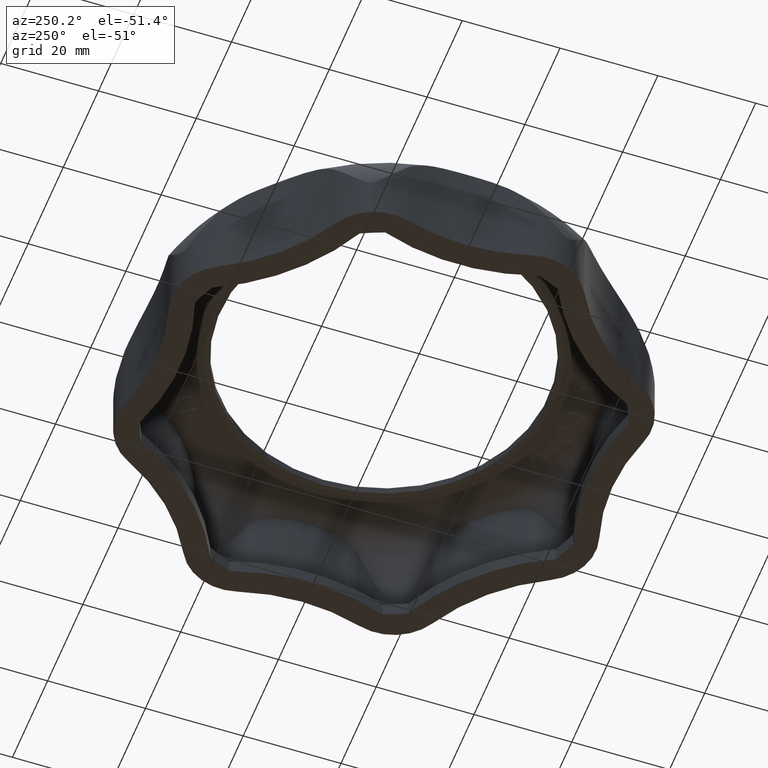
[diagram: clean part render]
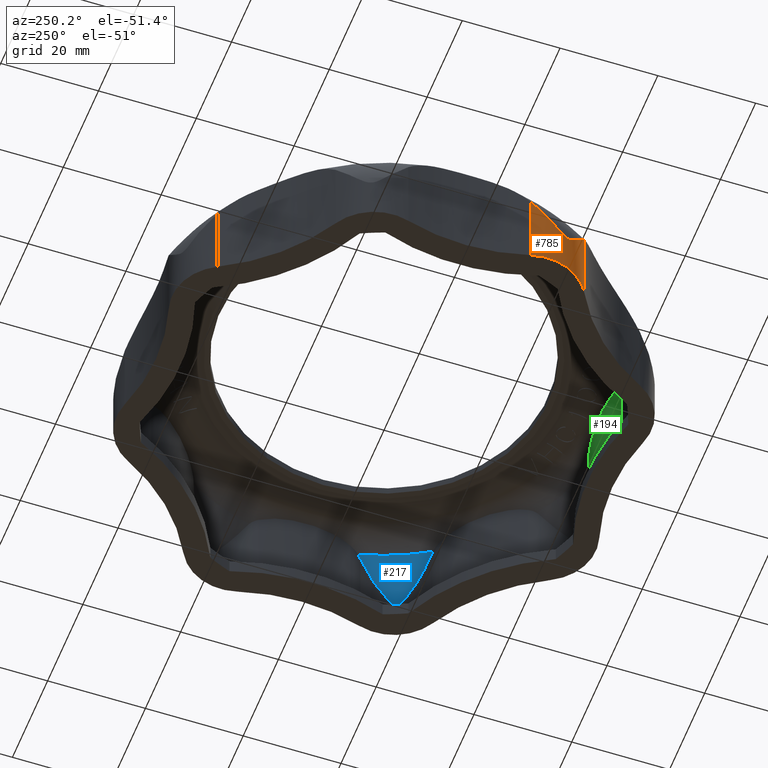
[diagram: same view with three faces highlighted in distinct colors, each labeled with its STEP entity id]
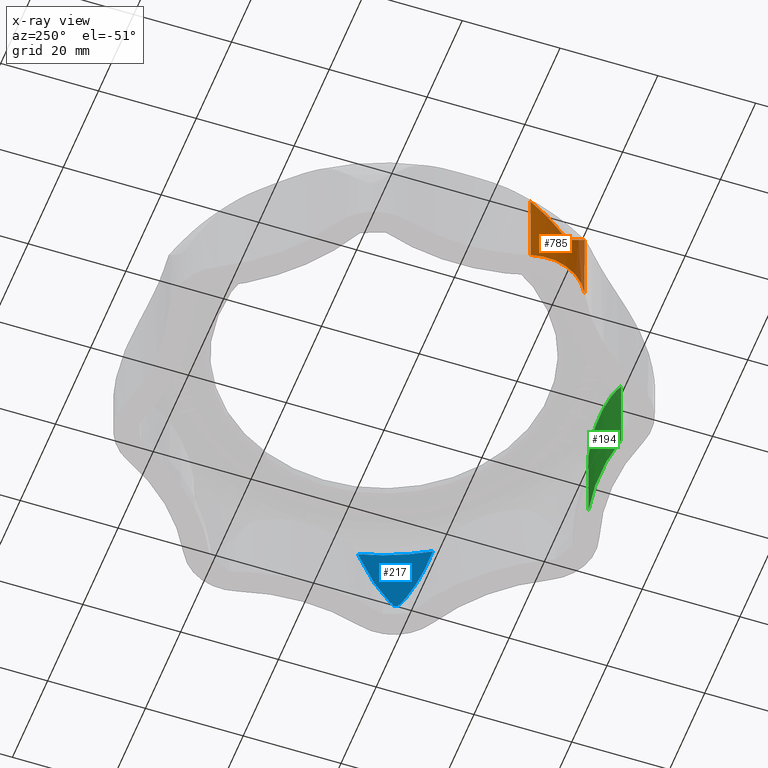
[diagram: x-ray of the same camera — body ghosted, the three highlighted faces saturated]
A machine part, auxiliary view with three faces highlighted in distinct colors.
The next image is the same camera in x-ray (body ghosted, the three faces saturated) — at least one of them is partly hidden behind the body in this view.
Their STEP definitions:

[orange] entity #785 — the highlighted cylindrical surface (partial cylindrical patch) has radius 11 mm, axis along (0, 0, -1).
#785 = ADVANCED_FACE( '', ( #3769 ), #3770, .T. );
#3769 = FACE_OUTER_BOUND( '', #8477, .T. );
#3770 = CYLINDRICAL_SURFACE( '', #8478, 11.0000000000000 );
#8477 = EDGE_LOOP( '', ( #19138, #19139, #19140, #19141 ) );
#8478 = AXIS2_PLACEMENT_3D( '', #19142, #19143, #19144 );
#19138 = ORIENTED_EDGE( '', *, *, #34962, .F. );
#19139 = ORIENTED_EDGE( '', *, *, #31592, .T. );
#19140 = ORIENTED_EDGE( '', *, *, #34956, .T. );
#19141 = ORIENTED_EDGE( '', *, *, #34979, .T. );
#19142 = CARTESIAN_POINT( '', ( -38.0204367624887, -15.7485805543714, -151.431544236596 ) );
#19143 = DIRECTION( '', ( 0.000000000000000, 0.000000000000000, -1.00000000000000 ) );
#19144 = DIRECTION( '', ( 0.467628644481239, 0.883925025587939, 0.000000000000000 ) );
#31592 = EDGE_CURVE( '', #38249, #38247, #38250, .T. );
#34956 = EDGE_CURVE( '', #38247, #44286, #44287, .T. );
#34962 = EDGE_CURVE( '', #38249, #44297, #44298, .T. );
#34979 = EDGE_CURVE( '', #44286, #44297, #44319, .T. );
#38247 = VERTEX_POINT( '', #49328 );
#38249 = VERTEX_POINT( '', #49330 );
#38250 = CIRCLE( '', #49331, 11.0000000000000 );
#44286 = VERTEX_POINT( '', #64978 );
#44287 = LINE( '', #64979, #64980 );
#44297 = VERTEX_POINT( '', #65024 );
#44298 = LINE( '', #65025, #65026 );
#44319 = B_SPLINE_CURVE_WITH_KNOTS( '', 3, ( #65255, #65256, #65257, #65258, #65259, #65260, #65261, #65262, #65263, #65264, #65265, #65266, #65267, #65268, #65269, #65270, #65271, #65272, #65273, #65274, #65275, #65276, #65277, #65278, #65279, #65280, #65281, #65282, #65283, #65284, #65285, #65286, #65287, #65288, #65289, #65290 ), .UNSPECIFIED., .F., .F., ( 4, 2, 2, 2, 2, 2, 2, 2, 2, 2, 2, 2, 2, 2, 2, 2, 2, 4 ), ( 3.95665783965913E-007, 0.00270470619711453, 0.00540901672844509, 0.00676117199411038, 0.00811332725977566, 0.00878940489260830, 0.00946548252544094, 0.0101415601582736, 0.0104795989746899, 0.0108176377911062, 0.0114937154239388, 0.0121697930567715, 0.0128458706896041, 0.0135219483224367, 0.0148741035881020, 0.0162262588537673, 0.0189305693850978, 0.0216348799164283 ), .UNSPECIFIED. );
#49328 = CARTESIAN_POINT( '', ( -43.1643518517822, -25.4717558358389, -0.000342076785297268 ) );
#49330 = CARTESIAN_POINT( '', ( -48.5330571801671, -12.5105546196677, -0.000342076785297268 ) );
#49331 = AXIS2_PLACEMENT_3D( '', #77690, #77691, #77692 );
#64978 = CARTESIAN_POINT( '', ( -43.1643518517822, -25.4717558358389, 16.5159049165595 ) );
#64979 = CARTESIAN_POINT( '', ( -43.1643518517823, -25.4717558358389, -151.431544236596 ) );
#64980 = VECTOR( '', #78630, 1000.00000000000 );
#65024 = CARTESIAN_POINT( '', ( -48.5330571801635, -12.5105546196560, 16.5159049165736 ) );
#65025 = CARTESIAN_POINT( '', ( -48.5330571801671, -12.5105546196677, -151.431544236596 ) );
#65026 = VECTOR( '', #78633, 1000.00000000000 );
#65255 = CARTESIAN_POINT( '', ( -43.1643518517823, -25.4717558358388, 16.5159049165595 ) );
#65256 = CARTESIAN_POINT( '', ( -43.6872267584845, -25.1951359000114, 15.8238550649493 ) );
#65257 = CARTESIAN_POINT( '', ( -44.1792912709590, -24.8812229393074, 15.1323374324265 ) );
#65258 = CARTESIAN_POINT( '', ( -45.1058734687146, -24.1826325147106, 13.7509064053809 ) );
#65259 = CARTESIAN_POINT( '', ( -45.5401600971507, -23.7984796481749, 13.0605547281404 ) );
#65260 = CARTESIAN_POINT( '', ( -46.1527782615075, -23.1615287098563, 12.0332554174375 ) );
#65261 = CARTESIAN_POINT( '', ( -46.3505236385622, -22.9390106090096, 11.6922432960740 ) );
#65262 = CARTESIAN_POINT( '', ( -46.7353730849093, -22.4673986520527, 11.0179341180032 ) );
#65263 = CARTESIAN_POINT( '', ( -46.9225530314980, -22.2183195938998, 10.6837538602552 ) );
#65264 = CARTESIAN_POINT( '', ( -47.1968512963834, -21.8165057045992, 10.2044144812275 ) );
#65265 = CARTESIAN_POINT( '', ( -47.2873775542202, -21.6776099088370, 10.0481218771725 ) );
#65266 = CARTESIAN_POINT( '', ( -47.4682090412108, -21.3849960547566, 9.74833327157230 ) );
#65267 = CARTESIAN_POINT( '', ( -47.5578351254992, -21.2324487009526, 9.60570996314440 ) );
#65268 = CARTESIAN_POINT( '', ( -47.7382408399497, -20.9060083334030, 9.34802898548798 ) );
#65269 = CARTESIAN_POINT( '', ( -47.8301912290722, -20.7299206861208, 9.23116472176113 ) );
#65270 = CARTESIAN_POINT( '', ( -47.9688105914218, -20.4433772710043, 9.10421430918793 ) );
#65271 = CARTESIAN_POINT( '', ( -48.0147910716014, -20.3448274880570, 9.07041021795348 ) );
#65272 = CARTESIAN_POINT( '', ( -48.1065190208688, -20.1398843025403, 9.02527685820773 ) );
#65273 = CARTESIAN_POINT( '', ( -48.1520465153899, -20.0338263332541, 9.01453423311431 ) );
#65274 = CARTESIAN_POINT( '', ( -48.2812746923350, -19.7192977766729, 9.02156999548207 ) );
#65275 = CARTESIAN_POINT( '', ( -48.3606790156411, -19.5066298229417, 9.08031374702041 ) );
#65276 = CARTESIAN_POINT( '', ( -48.4957701436170, -19.1117538643718, 9.26017119206250 ) );
#65277 = CARTESIAN_POINT( '', ( -48.5539905909933, -18.9232310997492, 9.38092108644531 ) );
#65278 = CARTESIAN_POINT( '', ( -48.6547001182018, -18.5675529246881, 9.64377776627560 ) );
#65279 = CARTESIAN_POINT( '', ( -48.6978095652391, -18.3985454490536, 9.78707980922311 ) );
#65280 = CARTESIAN_POINT( '', ( -48.7742306650352, -18.0690375381390, 10.0858599404053 ) );
#65281 = CARTESIAN_POINT( '', ( -48.8074514103585, -17.9087028760662, 10.2415490863429 ) );
#65282 = CARTESIAN_POINT( '', ( -48.8951810183349, -17.4347570582129, 10.7197156118017 ) );
#65283 = CARTESIAN_POINT( '', ( -48.9377290290556, -17.1283367008847, 11.0526071378945 ) );
#65284 = CARTESIAN_POINT( '', ( -48.9969392298331, -16.5279335179680, 11.7224584049463 ) );
#65285 = CARTESIAN_POINT( '', ( -49.0136506417492, -16.2330763535141, 12.0611497852253 ) );
#65286 = CARTESIAN_POINT( '', ( -49.0289734426218, -15.3560624524032, 13.0815420740344 ) );
#65287 = CARTESIAN_POINT( '', ( -48.9929790124228, -14.7812117405667, 13.7673594967757 ) );
#65288 = CARTESIAN_POINT( '', ( -48.8317028769561, -13.6393127073024, 15.1402118231744 ) );
#65289 = CARTESIAN_POINT( '', ( -48.7062269995154, -13.0727701841229, 15.8276654461581 ) );
#65290 = CARTESIAN_POINT( '', ( -48.5330571801634, -12.5105546196561, 16.5159049165737 ) );
#77690 = CARTESIAN_POINT( '', ( -38.0204367624887, -15.7485805543714, -0.000342076785297268 ) );
#77691 = DIRECTION( '', ( -3.31376091451462E-017, -8.00012654228307E-017, 1.00000000000000 ) );
#77692 = DIRECTION( '', ( 0.923879532511287, 0.382683432365090, 6.12303176911189E-017 ) );
#78630 = DIRECTION( '', ( 0.000000000000000, 0.000000000000000, 1.00000000000000 ) );
#78633 = DIRECTION( '', ( 0.000000000000000, 0.000000000000000, 1.00000000000000 ) );

[blue] entity #217 — the highlighted face is a freeform B-spline surface patch.
#217 = ADVANCED_FACE( '', ( #2632 ), #2633, .F. );
#2632 = FACE_OUTER_BOUND( '', #7230, .T. );
#2633 = ( B_SPLINE_SURFACE( 3, 3, ( ( #7232, #7233, #7234, #7235 ), ( #7236, #7237, #7238, #7239 ), ( #7240, #7241, #7242, #7243 ), ( #7244, #7245, #7246, #7247 ) ), .UNSPECIFIED., .F., .F., .F. )B_SPLINE_SURFACE_WITH_KNOTS( ( 4, 4 ), ( 4, 4 ), ( 5.34152165611692, 5.65405263144735 ), ( 0.0327453096824577, 0.452451399637477 ), .UNSPECIFIED. )RATIONAL_B_SPLINE_SURFACE( ( ( 1.00000000000000, 0.991876915723392, 0.991876915723392, 1.00000000000000 ), ( 0.985374358928426, 0.977370079966842, 0.977370079966842, 0.985374358928426 ), ( 0.985374358928426, 0.977370079966842, 0.977370079966842, 0.985374358928426 ), ( 1.00000000000000, 0.991876915723392, 0.991876915723392, 1.00000000000000 ) ) )BOUNDED_SURFACE(  )REPRESENTATION_ITEM( '' )GEOMETRIC_REPRESENTATION_ITEM(  )SURFACE(  ) );
#7230 = EDGE_LOOP( '', ( #14575, #14576, #14577, #14578 ) );
#7232 = CARTESIAN_POINT( '', ( 40.0940676645953, -24.5247982340315, 18.1726414556777 ) );
#7233 = CARTESIAN_POINT( '', ( 42.6594407424239, -20.3308293056894, 18.1726414556777 ) );
#7234 = CARTESIAN_POINT( '', ( 44.5408470997926, -15.7887125613949, 18.1726414556777 ) );
#7235 = CARTESIAN_POINT( '', ( 45.6924382695031, -11.0091359924725, 18.1726414556777 ) );
#7236 = CARTESIAN_POINT( '', ( 41.6709013167366, -25.4893181597946, 14.3699243735556 ) );
#7237 = CARTESIAN_POINT( '', ( 44.3371662929192, -21.1304073403585, 14.3699243735556 ) );
#7238 = CARTESIAN_POINT( '', ( 46.2925652639202, -16.4096566247177, 14.3699243735556 ) );
#7239 = CARTESIAN_POINT( '', ( 47.4894466178319, -11.4421071806081, 14.3699243735556 ) );
#7240 = CARTESIAN_POINT( '', ( 42.5373711133454, -26.0193216784069, 10.2655746537821 ) );
#7241 = CARTESIAN_POINT( '', ( 45.2590761687828, -21.5697753206981, 10.2655746537821 ) );
#7242 = CARTESIAN_POINT( '', ( 47.2551340671205, -16.7508652712494, 10.2655746537821 ) );
#7243 = CARTESIAN_POINT( '', ( 48.4769023687708, -11.6800247674201, 10.2655746537821 ) );
#7244 = CARTESIAN_POINT( '', ( 42.6554590256881, -26.0915538661787, 6.03967853385794 ) );
#7245 = CARTESIAN_POINT( '', ( 45.3847198011806, -21.6296551315716, 6.03967853385794 ) );
#7246 = CARTESIAN_POINT( '', ( 47.3863189519267, -16.7973673154060, 6.03967853385794 ) );
#7247 = CARTESIAN_POINT( '', ( 48.6114790021579, -11.7124496612204, 6.03967853385794 ) );
#14575 = ORIENTED_EDGE( '', *, *, #33743, .T. );
#14576 = ORIENTED_EDGE( '', *, *, #32560, .T. );
#14577 = ORIENTED_EDGE( '', *, *, #33741, .T. );
#14578 = ORIENTED_EDGE( '', *, *, #33745, .T. );
#32560 = EDGE_CURVE( '', #40180, #40178, #40181, .T. );
#33741 = EDGE_CURVE( '', #40178, #42440, #42442, .T. );
#33743 = EDGE_CURVE( '', #42444, #40180, #42445, .T. );
#33745 = EDGE_CURVE( '', #42440, #42444, #42447, .T. );
#40178 = VERTEX_POINT( '', #54385 );
#40180 = VERTEX_POINT( '', #54392 );
#40181 = CIRCLE( '', #54393, 46.9999998969480 );
#42440 = VERTEX_POINT( '', #60334 );
#42442 = B_SPLINE_CURVE_WITH_KNOTS( '', 3, ( #60337, #60338, #60339, #60340 ), .UNSPECIFIED., .F., .F., ( 4, 4 ), ( 2.58974117789860E-007, 0.00111476586526753 ), .UNSPECIFIED. );
#42444 = VERTEX_POINT( '', #60343 );
#42445 = B_SPLINE_CURVE_WITH_KNOTS( '', 3, ( #60344, #60345, #60346, #60347 ), .UNSPECIFIED., .F., .F., ( 4, 4 ), ( 3.54062311438632E-007, 0.00111917456912453 ), .UNSPECIFIED. );
#42447 = B_SPLINE_CURVE_WITH_KNOTS( '', 3, ( #60350, #60351, #60352, #60353, #60354, #60355, #60356, #60357, #60358, #60359, #60360, #60361, #60362, #60363, #60364, #60365, #60366, #60367, #60368, #60369, #60370, #60371, #60372, #60373, #60374, #60375, #60376, #60377, #60378, #60379, #60380, #60381, #60382, #60383, #60384, #60385, #60386, #60387 ), .UNSPECIFIED., .F., .F., ( 4, 2, 2, 2, 2, 2, 2, 2, 2, 2, 2, 2, 2, 2, 2, 2, 2, 2, 4 ), ( 3.50084349988853E-007, 0.00339869376782857, 0.00679703745130715, 0.00849620929304644, 0.0101953811347857, 0.0118945529765250, 0.0127441388973947, 0.0131689318578295, 0.0133813283380469, 0.0135937248182643, 0.0138061212984817, 0.0140185177786991, 0.0144433107391339, 0.0152928966600036, 0.0169920685017429, 0.0186912403434822, 0.0203904121852215, 0.0237887558687001, 0.0271870995521787 ), .UNSPECIFIED. );
#54385 = CARTESIAN_POINT( '', ( 45.6719604569566, -11.0937828684044, 18.1726414556777 ) );
#54392 = CARTESIAN_POINT( '', ( 40.1394420444575, -24.4504638539383, 18.1726414556777 ) );
#54393 = AXIS2_PLACEMENT_3D( '', #77772, #77773, #77774 );
#60334 = CARTESIAN_POINT( '', ( 45.9480757702255, -11.7036693297914, 17.2816170741763 ) );
#60337 = CARTESIAN_POINT( '', ( 45.6719604569567, -11.0937828684042, 18.1726414556775 ) );
#60338 = CARTESIAN_POINT( '', ( 45.7623252853920, -11.3125957906160, 17.8857359638061 ) );
#60339 = CARTESIAN_POINT( '', ( 45.8549274879702, -11.5149997766273, 17.5882923303716 ) );
#60340 = CARTESIAN_POINT( '', ( 45.9480757702257, -11.7036693297913, 17.2816170741762 ) );
#60343 = CARTESIAN_POINT( '', ( 40.7682533178454, -24.2136682035306, 17.2780557812516 ) );
#60344 = CARTESIAN_POINT( '', ( 40.7682533178455, -24.2136682035305, 17.2780557812517 ) );
#60345 = CARTESIAN_POINT( '', ( 40.5682811744683, -24.2813936820311, 17.5859873887584 ) );
#60346 = CARTESIAN_POINT( '', ( 40.3589119002426, -24.3592849623201, 17.8846228760410 ) );
#60347 = CARTESIAN_POINT( '', ( 40.1394420444575, -24.4504638539382, 18.1726414556777 ) );
#60350 = CARTESIAN_POINT( '', ( 45.9480757702257, -11.7036693297913, 17.2816170741762 ) );
#60351 = CARTESIAN_POINT( '', ( 46.2353433411856, -12.2851449976104, 16.3360452435541 ) );
#60352 = CARTESIAN_POINT( '', ( 46.4513129240281, -12.8794136526595, 15.3902390674443 ) );
#60353 = CARTESIAN_POINT( '', ( 46.7553480947723, -14.0792623885449, 13.4908829030559 ) );
#60354 = CARTESIAN_POINT( '', ( 46.8433433356101, -14.6848187705307, 12.5373098285337 ) );
#60355 = CARTESIAN_POINT( '', ( 46.8836785300754, -15.5948495244122, 11.0973675927389 ) );
#60356 = CARTESIAN_POINT( '', ( 46.8817951191408, -15.8984950506900, 10.6157957882150 ) );
#60357 = CARTESIAN_POINT( '', ( 46.8471272304551, -16.5063976283387, 9.64944650483756 ) );
#60358 = CARTESIAN_POINT( '', ( 46.8143365699858, -16.8105755410101, 9.16441127675105 ) );
#60359 = CARTESIAN_POINT( '', ( 46.7168679166872, -17.4185928334242, 8.19957962196558 ) );
#60360 = CARTESIAN_POINT( '', ( 46.6528918273516, -17.7213381613941, 7.71732210508068 ) );
#60361 = CARTESIAN_POINT( '', ( 46.5253651676718, -18.1936203387292, 7.01135817655729 ) );
#60362 = CARTESIAN_POINT( '', ( 46.4779986358952, -18.3532398616819, 6.77743501629532 ) );
#60363 = CARTESIAN_POINT( '', ( 46.3901401256110, -18.6175018289487, 6.45090023693012 ) );
#60364 = CARTESIAN_POINT( '', ( 46.3584413963997, -18.7087786527567, 6.34591698870211 ) );
#60365 = CARTESIAN_POINT( '', ( 46.2995307127662, -18.8678950157082, 6.21349564672027 ) );
#60366 = CARTESIAN_POINT( '', ( 46.2778360376151, -18.9250005059681, 6.17378453153726 ) );
#60367 = CARTESIAN_POINT( '', ( 46.2285710645470, -19.0501097140787, 6.12048615595255 ) );
#60368 = CARTESIAN_POINT( '', ( 46.2007984873093, -19.1183914127564, 6.10922706905213 ) );
#60369 = CARTESIAN_POINT( '', ( 46.1456580299715, -19.2492922717393, 6.12890161138732 ) );
#60370 = CARTESIAN_POINT( '', ( 46.1185527356732, -19.3114184100564, 6.15818713244535 ) );
#60371 = CARTESIAN_POINT( '', ( 46.0685198059326, -19.4231842278387, 6.23279142581123 ) );
#60372 = CARTESIAN_POINT( '', ( 46.0449095025868, -19.4744191873938, 6.27843770488995 ) );
#60373 = CARTESIAN_POINT( '', ( 45.9778428263235, -19.6169479252341, 6.42215301307403 ) );
#60374 = CARTESIAN_POINT( '', ( 45.9366796744607, -19.7003594736371, 6.52908456463974 ) );
#60375 = CARTESIAN_POINT( '', ( 45.8144365510391, -19.9399580710896, 6.85924889602386 ) );
#60376 = CARTESIAN_POINT( '', ( 45.7352711069107, -20.0838501390316, 7.09242109782202 ) );
#60377 = CARTESIAN_POINT( '', ( 45.4926992611204, -20.4999707419743, 7.79460429828635 ) );
#60378 = CARTESIAN_POINT( '', ( 45.3243125178274, -20.7557197311628, 8.27228023468839 ) );
#60379 = CARTESIAN_POINT( '', ( 44.9641723238453, -21.2482825259060, 9.22962179140139 ) );
#60380 = CARTESIAN_POINT( '', ( 44.7728053661826, -21.4837464866562, 9.71079294901536 ) );
#60381 = CARTESIAN_POINT( '', ( 44.3694436831197, -21.9322881309205, 10.6682213771611 ) );
#60382 = CARTESIAN_POINT( '', ( 44.1572197226506, -22.1456637925170, 11.1454137419482 ) );
#60383 = CARTESIAN_POINT( '', ( 43.4891606465252, -22.7532500067875, 12.5724989372451 ) );
#60384 = CARTESIAN_POINT( '', ( 43.0020274359217, -23.1151211455782, 13.5178726629904 ) );
#60385 = CARTESIAN_POINT( '', ( 41.9462747013983, -23.7420188919877, 15.4014912769249 ) );
#60386 = CARTESIAN_POINT( '', ( 41.3777194076157, -24.0070823644508, 16.3397562559051 ) );
#60387 = CARTESIAN_POINT( '', ( 40.7682533178455, -24.2136682035304, 17.2780557812517 ) );
#77772 = CARTESIAN_POINT( '', ( 0.000000000000000, 0.000000000000000, 18.1726414556777 ) );
#77773 = DIRECTION( '', ( -3.31376091451462E-017, -8.00012654228308E-017, 1.00000000000000 ) );
#77774 = DIRECTION( '', ( 0.923879532511287, 0.382683432365090, 6.12303176911189E-017 ) );

[green] entity #194 — the highlighted cylindrical surface (partial cylindrical patch) has radius 45 mm, axis along (0, 0, -1).
#194 = ADVANCED_FACE( '', ( #2586 ), #2587, .T. );
#2586 = FACE_OUTER_BOUND( '', #7162, .T. );
#2587 = CYLINDRICAL_SURFACE( '', #7163, 45.0000000000000 );
#7162 = EDGE_LOOP( '', ( #14406, #14407, #14408, #14409 ) );
#7163 = AXIS2_PLACEMENT_3D( '', #14410, #14411, #14412 );
#14406 = ORIENTED_EDGE( '', *, *, #33753, .T. );
#14407 = ORIENTED_EDGE( '', *, *, #32566, .F. );
#14408 = ORIENTED_EDGE( '', *, *, #33749, .F. );
#14409 = ORIENTED_EDGE( '', *, *, #33513, .F. );
#14410 = CARTESIAN_POINT( '', ( -1.28050743619657E-007, -89.1499997030150, -143.634815507692 ) );
#14411 = DIRECTION( '', ( 0.000000000000000, 0.000000000000000, -1.00000000000000 ) );
#14412 = DIRECTION( '', ( 0.544644097383825, 0.838667280382965, 0.000000000000000 ) );
#32566 = EDGE_CURVE( '', #40190, #40192, #40193, .T. );
#33513 = EDGE_CURVE( '', #42082, #42084, #42085, .F. );
#33749 = EDGE_CURVE( '', #42084, #40190, #42452, .T. );
#33753 = EDGE_CURVE( '', #42082, #40192, #42457, .T. );
#40190 = VERTEX_POINT( '', #54431 );
#40192 = VERTEX_POINT( '', #54438 );
#40193 = B_SPLINE_CURVE_WITH_KNOTS( '', 3, ( #54439, #54440, #54441, #54442, #54443, #54444, #54445, #54446, #54447, #54448, #54449, #54450, #54451, #54452, #54453, #54454, #54455, #54456, #54457, #54458 ), .UNSPECIFIED., .F., .F., ( 4, 2, 2, 2, 2, 2, 2, 2, 2, 4 ), ( 2.64129053127865E-007, 0.00240589908405914, 0.00481153403906515, 0.00721716899407116, 0.00962280394907716, 0.0120284389040832, 0.0132312563815862, 0.0144340738590892, 0.0168397088140952, 0.0192453437691012 ), .UNSPECIFIED. );
#42082 = VERTEX_POINT( '', #59354 );
#42084 = VERTEX_POINT( '', #59356 );
#42085 = CIRCLE( '', #59357, 45.0000000000000 );
#42452 = LINE( '', #60397, #60398 );
#42457 = LINE( '', #60444, #60445 );
#54431 = CARTESIAN_POINT( '', ( 9.35576019892661, -45.1333015094364, 19.4840506538547 ) );
#54438 = CARTESIAN_POINT( '', ( -9.35575937456160, -45.1333009521850, 19.4840514917589 ) );
#54439 = CARTESIAN_POINT( '', ( 9.35576033365884, -45.1333012104758, 19.4840509657454 ) );
#54440 = CARTESIAN_POINT( '', ( 8.63530108118358, -44.9801674130892, 19.8321297723982 ) );
#54441 = CARTESIAN_POINT( '', ( 7.88911701329745, -44.8401820732066, 20.0962026452959 ) );
#54442 = CARTESIAN_POINT( '', ( 6.36188248498733, -44.5952630606027, 20.5200817732561 ) );
#54443 = CARTESIAN_POINT( '', ( 5.58057729969568, -44.4902162593196, 20.6789207604184 ) );
#54444 = CARTESIAN_POINT( '', ( 3.99076793719565, -44.3201784685482, 20.9223376131139 ) );
#54445 = CARTESIAN_POINT( '', ( 3.19104198555917, -44.2561756411005, 21.0053346941574 ) );
#54446 = CARTESIAN_POINT( '', ( 1.59556902310496, -44.1712008333604, 21.1136194687209 ) );
#54447 = CARTESIAN_POINT( '', ( 0.797678319783110, -44.1499934093857, 21.1390736851183 ) );
#54448 = CARTESIAN_POINT( '', ( -0.798388511880254, -44.1500059994445, 21.1390582565004 ) );
#54449 = CARTESIAN_POINT( '', ( -1.59656463145799, -44.1712255538498, 21.1135907762693 ) );
#54450 = CARTESIAN_POINT( '', ( -2.79406067183014, -44.2350466114055, 21.0322583371125 ) );
#54451 = CARTESIAN_POINT( '', ( -3.19326502032482, -44.2616551116610, 20.9978591490430 ) );
#54452 = CARTESIAN_POINT( '', ( -3.99175959787770, -44.3256059295414, 20.9122894198802 ) );
#54453 = CARTESIAN_POINT( '', ( -4.39216060180353, -44.3630797804594, 20.8609353459494 ) );
#54454 = CARTESIAN_POINT( '', ( -5.58261999341027, -44.4904941689709, 20.6784968636264 ) );
#54455 = CARTESIAN_POINT( '', ( -6.36297156947246, -44.5954286918390, 20.5198057793242 ) );
#54456 = CARTESIAN_POINT( '', ( -7.88904856403913, -44.8401800427083, 20.0961954188945 ) );
#54457 = CARTESIAN_POINT( '', ( -8.63502797099256, -44.9801093298109, 19.8322616839329 ) );
#54458 = CARTESIAN_POINT( '', ( -9.35575937456163, -45.1333009521850, 19.4840514917590 ) );
#59354 = CARTESIAN_POINT( '', ( -9.35575937456171, -45.1333009521850, 2.99965792321471 ) );
#59356 = CARTESIAN_POINT( '', ( 9.35576019894154, -45.1333015094395, 2.99965792321470 ) );
#59357 = AXIS2_PLACEMENT_3D( '', #77859, #77860, #77861 );
#60397 = CARTESIAN_POINT( '', ( 9.35576026556260, -45.1333011960019, -143.634815507692 ) );
#60398 = VECTOR( '', #78052, 1000.00000000000 );
#60444 = CARTESIAN_POINT( '', ( -9.35575935393140, -45.1333010492455, -143.634815507692 ) );
#60445 = VECTOR( '', #78054, 1000.00000000000 );
#77859 = CARTESIAN_POINT( '', ( -1.28050743619657E-007, -89.1499997030150, 2.99965792321470 ) );
#77860 = DIRECTION( '', ( -3.31376091451462E-017, -8.00012654228308E-017, 1.00000000000000 ) );
#77861 = DIRECTION( '', ( 0.923879532511287, 0.382683432365090, 6.12303176911189E-017 ) );
#78052 = DIRECTION( '', ( 0.000000000000000, 0.000000000000000, 1.00000000000000 ) );
#78054 = DIRECTION( '', ( 0.000000000000000, 0.000000000000000, 1.00000000000000 ) );